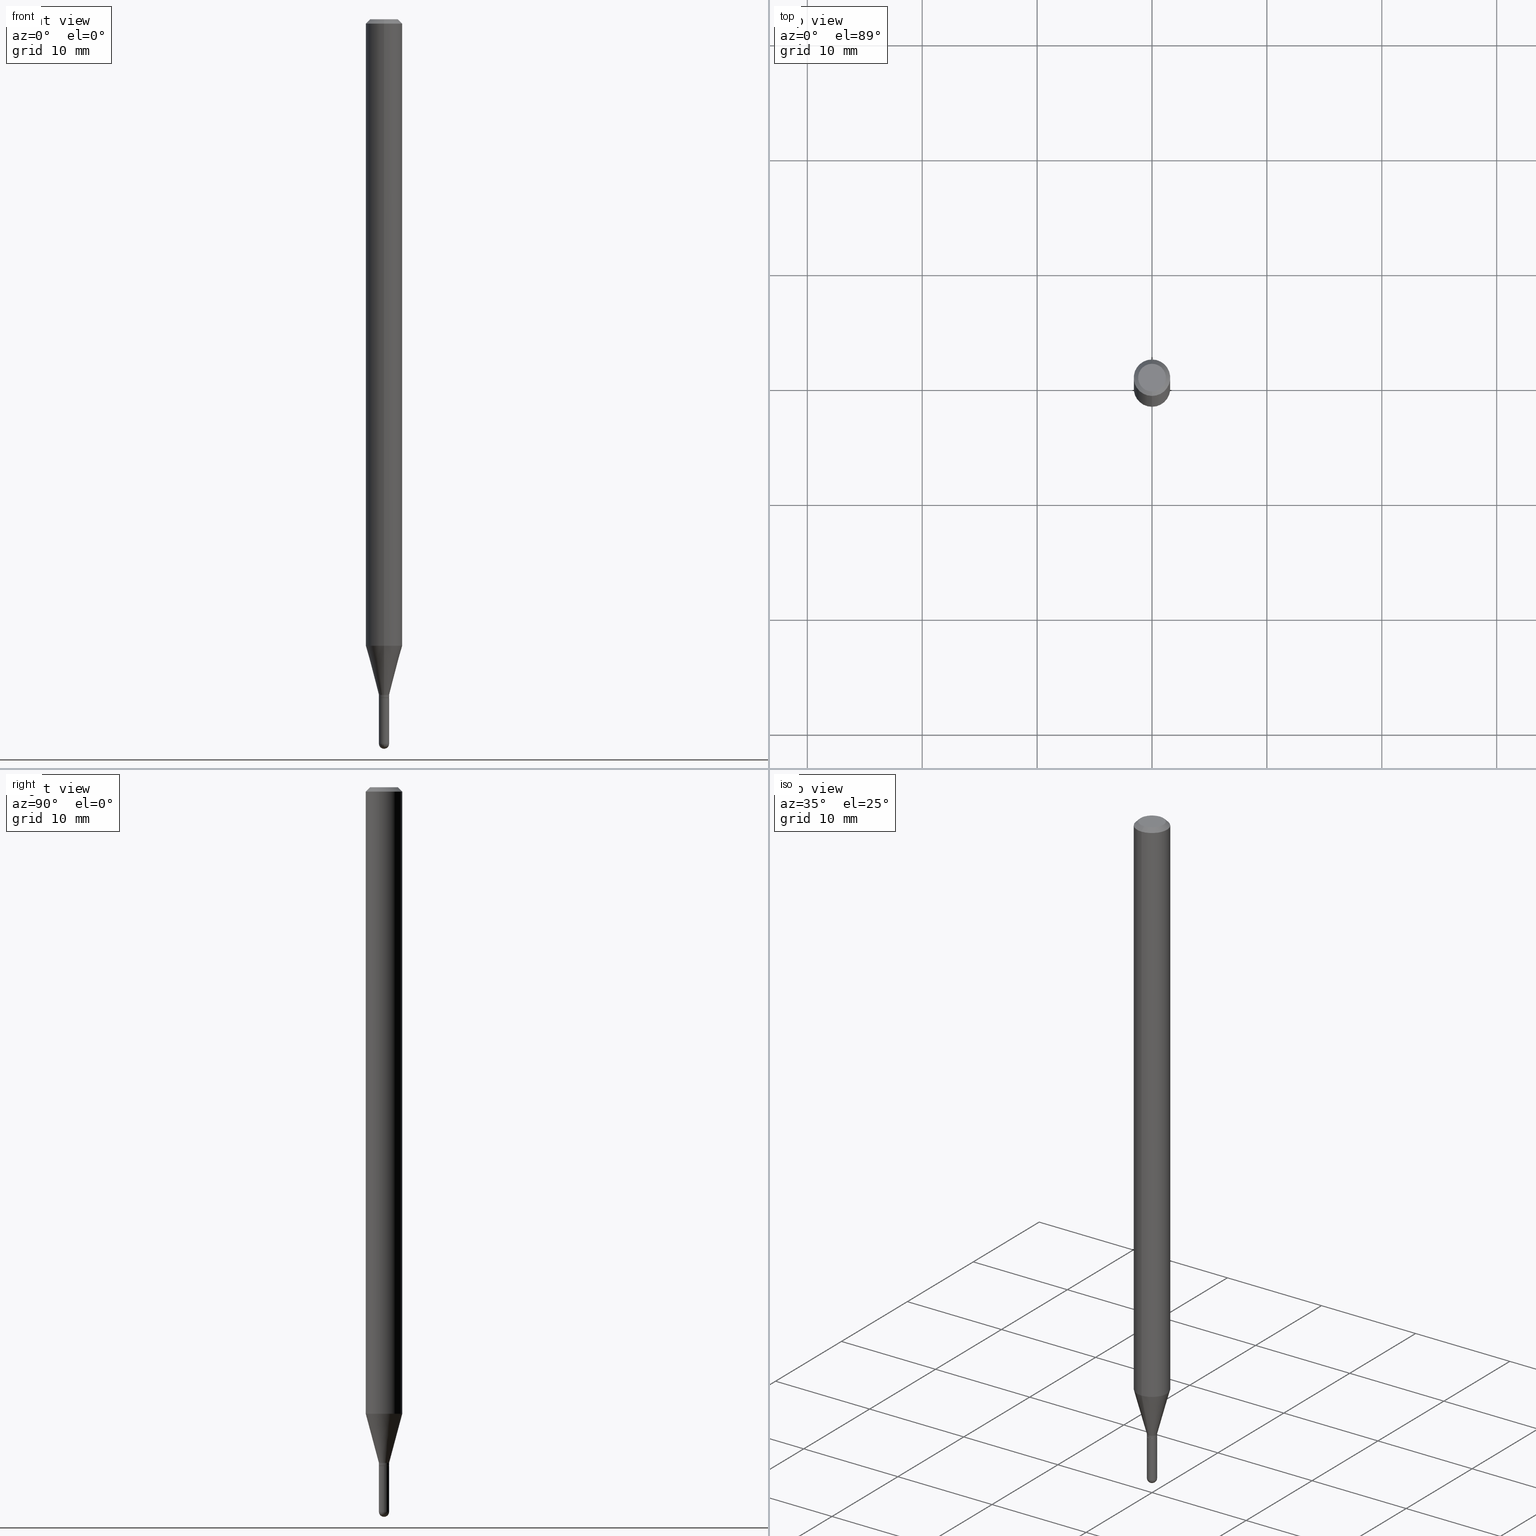
[diagram: canonical four-view strip — front | top / right | iso, engineering-drawing reading convention]
A machine part, canonical four-view strip (front | top / right | iso — engineering-drawing reading convention). The complete STEP part file that produces these views, byte-faithful:
ISO-10303-21;
HEADER;
FILE_DESCRIPTION (( 'STEP AP203' ),
    '1' );
FILE_NAME ('02726.STEP',
    '2024-03-07T21:01:19',
    ( '' ),
    ( '' ),
    'SwSTEP 2.0',
    'SolidWorks 2023',
    '' );
FILE_SCHEMA (( 'CONFIG_CONTROL_DESIGN' ));
ENDSEC;

DATA;
#1 = DATE_AND_TIME ( #397, #4 ) ;
#2 = DIRECTION ( 'NONE',  ( 1.000000000000000000, -6.982962677686303787E-15, 0.000000000000000000 ) ) ;
#3 = AXIS2_PLACEMENT_3D ( 'NONE', #422, #358, #71 ) ;
#4 = LOCAL_TIME ( 16, 1, 19.00000000000000000, #213 ) ;
#5 = DIRECTION ( 'NONE',  ( -2.445429610108093840E-29, 3.491537469856373273E-15, 1.000000000000000000 ) ) ;
#6 = CALENDAR_DATE ( 2024, 7, 3 ) ;
#7 = DIRECTION ( 'NONE',  ( -1.000000000000000000, 6.982962677686265922E-15, -4.876176775795935793E-29 ) ) ;
#8 = CARTESIAN_POINT ( 'NONE',  ( 5.685714974380442812E-29, -8.117694112810313450E-15, -2.325000000000000178 ) ) ;
#9 = CC_DESIGN_PERSON_AND_ORGANIZATION_ASSIGNMENT ( #52, #120, ( #225 ) ) ;
#10 = APPROVAL_ROLE ( '' ) ;
#11 = DIRECTION ( 'NONE',  ( 1.000000000000000000, -6.982962677686265922E-15, 4.876176775795936353E-29 ) ) ;
#12 = CONICAL_SURFACE ( 'NONE', #381, 0.01700000000000000122, 0.7853981633974739252 ) ;
#13 = ORIENTED_EDGE ( 'NONE', *, *, #491, .F. ) ;
#14 = DESIGN_CONTEXT ( 'detailed design', #83, 'design' ) ;
#15 = VECTOR ( 'NONE', #145, 39.37007874015748143 ) ;
#16 = VECTOR ( 'NONE', #156, 39.37007874015748143 ) ;
#17 = VERTEX_POINT ( 'NONE', #35 ) ;
#18 = ORIENTED_EDGE ( 'NONE', *, *, #176, .T. ) ;
#19 = ORIENTED_EDGE ( 'NONE', *, *, #477, .T. ) ;
#20 = CIRCLE ( 'NONE', #237, 0.01750000000000000167 ) ;
#21 = DIRECTION ( 'NONE',  ( 6.982962677686265922E-15, 1.000000000000000000, -3.483106191921935554E-15 ) ) ;
#22 = EDGE_CURVE ( 'NONE', #258, #240, #196, .T. ) ;
#23 = DIRECTION ( 'NONE',  ( -1.807323732225329350E-15, -0.2588190451025180194, 0.9659258262890689783 ) ) ;
#24 = DIRECTION ( 'NONE',  ( -2.445429610108093840E-29, 3.491537469856373273E-15, 1.000000000000000000 ) ) ;
#25 = EDGE_CURVE ( 'NONE', #142, #346, #508, .T. ) ;
#26 = VERTEX_POINT ( 'NONE', #318 ) ;
#27 = DIRECTION ( 'NONE',  ( -2.445429610108093840E-29, 3.491537469856373273E-15, 1.000000000000000000 ) ) ;
#28 = CARTESIAN_POINT ( 'NONE',  ( -1.243449787579559146E-16, -0.01750000000000853650, -2.482500000000000817 ) ) ;
#29 = ORIENTED_EDGE ( 'NONE', *, *, #198, .F. ) ;
#30 = EDGE_CURVE ( 'NONE', #217, #352, #204, .T. ) ;
#31 = CARTESIAN_POINT ( 'NONE',  ( 5.661169547400236272E-29, -8.082909242717501543E-15, -2.314999999999999503 ) ) ;
#32 = AXIS2_PLACEMENT_3D ( 'NONE', #41, #24, #122 ) ;
#33 = LINE ( 'NONE', #267, #16 ) ;
#34 = CC_DESIGN_SECURITY_CLASSIFICATION ( #225, ( #97 ) ) ;
#35 = CARTESIAN_POINT ( 'NONE',  ( 4.440892098501154699E-16, 0.06249999999999995143, -0.01500000000000054588 ) ) ;
#36 = DIRECTION ( 'NONE',  ( -2.445468806185136597E-29, 3.491481338843145583E-15, 1.000000000000000000 ) ) ;
#37 = CARTESIAN_POINT ( 'NONE',  ( 6.112923744959809177E-29, -8.729774913057117392E-15, -2.499999999999999556 ) ) ;
#38 = DIRECTION ( 'NONE',  ( 1.000000000000000000, -6.982962677686265922E-15, 4.883557194083112340E-29 ) ) ;
#39 = MANIFOLD_SOLID_BREP ( 'Body-Move/Copy2[1]', #335 ) ;
#40 = CALENDAR_DATE ( 2024, 7, 3 ) ;
#41 = CARTESIAN_POINT ( 'NONE',  ( 5.684401128696264485E-29, -8.116078848681139883E-15, -2.324500000000000455 ) ) ;
#42 = CARTESIAN_POINT ( 'NONE',  ( 3.316907271900976096E-16, 0.04749999999999999362, -3.299201705626934125E-16 ) ) ;
#43 = PERSON_AND_ORGANIZATION ( #424, #46 ) ;
#44 = AXIS2_PLACEMENT_3D ( 'NONE', #91, #287, #207 ) ;
#45 = EDGE_CURVE ( 'NONE', #63, #140, #280, .T. ) ;
#46 = ORGANIZATION ( 'UNSPECIFIED', 'UNSPECIFIED', '' ) ;
#47 = LINE ( 'NONE', #320, #261 ) ;
#48 = APPROVAL_ROLE ( '' ) ;
#49 = FACE_OUTER_BOUND ( 'NONE', #115, .T. ) ;
#50 = COORDINATED_UNIVERSAL_TIME_OFFSET ( 5, 0, .BEHIND. ) ;
#51 = CYLINDRICAL_SURFACE ( 'NONE', #380, 0.01750000000000000167 ) ;
#52 = PERSON_AND_ORGANIZATION ( #424, #46 ) ;
#53 = MANIFOLD_SOLID_BREP ( 'Body-Move/Copy2[2]', #475 ) ;
#54 = CONICAL_SURFACE ( 'NONE', #342, 0.06250000000000000000, 0.7853981633974483900 ) ;
#55 = CIRCLE ( 'NONE', #331, 0.04749999999999999362 ) ;
#56 = PRODUCT_DEFINITION_SHAPE ( 'NONE', 'NONE',  #510 ) ;
#57 = AXIS2_PLACEMENT_3D ( 'NONE', #277, #394, #197 ) ;
#58 = CC_DESIGN_DATE_AND_TIME_ASSIGNMENT ( #1, #84, ( #225 ) ) ;
#59 = EDGE_LOOP ( 'NONE', ( #178, #100 ) ) ;
#60 = ORIENTED_EDGE ( 'NONE', *, *, #477, .F. ) ;
#61 = VECTOR ( 'NONE', #229, 39.37007874015748143 ) ;
#62 = AXIS2_PLACEMENT_3D ( 'NONE', #340, #233, #266 ) ;
#63 = VERTEX_POINT ( 'NONE', #123 ) ;
#64 = DATE_AND_TIME ( #376, #311 ) ;
#65 = EDGE_LOOP ( 'NONE', ( #388, #82, #137, #29 ) ) ;
#66 = CARTESIAN_POINT ( 'NONE',  ( 6.070876311354603530E-29, -8.667602423678111529E-15, -2.482500000000000817 ) ) ;
#67 = VERTEX_POINT ( 'NONE', #212 ) ;
#68 = AXIS2_PLACEMENT_3D ( 'NONE', #304, #264, #144 ) ;
#69 = DIRECTION ( 'NONE',  ( -1.000000000000000000, 6.982962677686265133E-15, -4.883557194083112901E-29 ) ) ;
#70 = DIRECTION ( 'NONE',  ( -2.445429610108093840E-29, 3.491537469856373273E-15, 1.000000000000000000 ) ) ;
#71 = DIRECTION ( 'NONE',  ( -6.982962677686266711E-15, -1.000000000000000000, 3.491537469856373667E-15 ) ) ;
#72 = CARTESIAN_POINT ( 'NONE',  ( 5.250478507593680395E-29, -7.496532457185947677E-15, -2.147057713659399347 ) ) ;
#73 = CYLINDRICAL_SURFACE ( 'NONE', #62, 0.06250000000000000000 ) ;
#74 = ADVANCED_FACE ( 'NONE', ( #49 ), #268, .T. ) ;
#75 = ORIENTED_EDGE ( 'NONE', *, *, #293, .F. ) ;
#76 = FACE_OUTER_BOUND ( 'NONE', #488, .T. ) ;
#77 = DIRECTION ( 'NONE',  ( -2.445429610108093840E-29, 3.491537469856373273E-15, 1.000000000000000000 ) ) ;
#78 = EDGE_CURVE ( 'NONE', #299, #148, #454, .T. ) ;
#79 = ORIENTED_EDGE ( 'NONE', *, *, #489, .F. ) ;
#80 = LINE ( 'NONE', #194, #494 ) ;
#81 = DIRECTION ( 'NONE',  ( -2.445429610108093840E-29, 3.491537469856373273E-15, 1.000000000000000000 ) ) ;
#82 = ORIENTED_EDGE ( 'NONE', *, *, #179, .T. ) ;
#83 = APPLICATION_CONTEXT ( 'configuration controlled 3d designs of mechanical parts and assemblies' ) ;
#84 = DATE_TIME_ROLE ( 'classification_date' ) ;
#85 = CARTESIAN_POINT ( 'NONE',  ( 8.024537423409226872E-45, -1.145728054338050006E-30, -3.281442814890313739E-16 ) ) ;
#86 = FACE_OUTER_BOUND ( 'NONE', #59, .T. ) ;
#87 = ADVANCED_FACE ( 'NONE', ( #367 ), #51, .T. ) ;
#88 = CARTESIAN_POINT ( 'NONE',  ( -0.01750000000000000167, -8.268303289486194452E-15, -2.325000000000000178 ) ) ;
#89 = AXIS2_PLACEMENT_3D ( 'NONE', #479, #124, #285 ) ;
#90 = AXIS2_PLACEMENT_3D ( 'NONE', #464, #499, #511 ) ;
#91 = CARTESIAN_POINT ( 'NONE',  ( 5.685623843501318247E-29, -8.117824617416066972E-15, -2.324999999999999734 ) ) ;
#92 = CARTESIAN_POINT ( 'NONE',  ( 5.661169547400236272E-29, -8.082909242717501543E-15, -2.314999999999999503 ) ) ;
#93 = ADVANCED_FACE ( 'NONE', ( #362 ), #253, .F. ) ;
#94 = DATE_AND_TIME ( #6, #160 ) ;
#95 = ADVANCED_FACE ( 'NONE', ( #166 ), #434, .T. ) ;
#96 = AXIS2_PLACEMENT_3D ( 'NONE', #92, #443, #327 ) ;
#97 = PRODUCT_DEFINITION_FORMATION_WITH_SPECIFIED_SOURCE ( 'ANY', '', #248, .NOT_KNOWN. ) ;
#98 = ORIENTED_EDGE ( 'NONE', *, *, #99, .F. ) ;
#99 = EDGE_CURVE ( 'NONE', #427, #17, #171, .T. ) ;
#100 = ORIENTED_EDGE ( 'NONE', *, *, #45, .T. ) ;
#101 = APPROVAL ( #368, 'UNSPECIFIED' ) ;
#102 = CIRCLE ( 'NONE', #170, 0.01749999999999965472 ) ;
#103 = ORIENTED_EDGE ( 'NONE', *, *, #78, .T. ) ;
#104 = ORIENTED_EDGE ( 'NONE', *, *, #275, .T. ) ;
#105 = DIRECTION ( 'NONE',  ( -1.000000000000000000, 6.982962677686265133E-15, -4.883557194083112901E-29 ) ) ;
#106 = APPROVAL ( #208, 'UNSPECIFIED' ) ;
#107 = CYLINDRICAL_SURFACE ( 'NONE', #68, 0.06250000000000000000 ) ;
#108 = FACE_OUTER_BOUND ( 'NONE', #65, .T. ) ;
#109 = ORIENTED_EDGE ( 'NONE', *, *, #172, .F. ) ;
#110 = LOCAL_TIME ( 16, 1, 19.00000000000000000, #359 ) ;
#111 = FACE_OUTER_BOUND ( 'NONE', #504, .T. ) ;
#112 = LINE ( 'NONE', #507, #263 ) ;
#113 = ORIENTED_EDGE ( 'NONE', *, *, #361, .F. ) ;
#114 = CARTESIAN_POINT ( 'NONE',  ( 5.685623843501318247E-29, -8.117824617416066972E-15, -2.324999999999999734 ) ) ;
#115 = EDGE_LOOP ( 'NONE', ( #103, #19, #113, #465 ) ) ;
#116 = FACE_OUTER_BOUND ( 'NONE', #226, .T. ) ;
#117 = CARTESIAN_POINT ( 'NONE',  ( 3.668144415162220984E-31, -5.237306204784674417E-17, -0.01500000000000032904 ) ) ;
#118 = EDGE_LOOP ( 'NONE', ( #104, #152, #109, #341 ) ) ;
#119 = ORIENTED_EDGE ( 'NONE', *, *, #220, .T. ) ;
#120 = PERSON_AND_ORGANIZATION_ROLE ( 'classification_officer' ) ;
#121 = LOCAL_TIME ( 16, 1, 19.00000000000000000, #50 ) ;
#122 = DIRECTION ( 'NONE',  ( -6.982962677686265133E-15, -1.000000000000000000, 0.000000000000000000 ) ) ;
#123 = CARTESIAN_POINT ( 'NONE',  ( -3.773273898774340269E-16, -0.04749999999999999362, -1.622962516708536484E-16 ) ) ;
#124 = DIRECTION ( 'NONE',  ( -2.445429610108093840E-29, 3.491537469856373273E-15, 1.000000000000000000 ) ) ;
#125 = APPROVAL_DATE_TIME ( #292, #106 ) ;
#126 = DIRECTION ( 'NONE',  ( -2.445468806185136597E-29, 3.491481338843145583E-15, 1.000000000000000000 ) ) ;
#127 = CALENDAR_DATE ( 2024, 7, 3 ) ;
#128 = CIRCLE ( 'NONE', #89, 0.01749999999999965472 ) ;
#129 = AXIS2_PLACEMENT_3D ( 'NONE', #185, #385, #379 ) ;
#130 = FACE_OUTER_BOUND ( 'NONE', #180, .T. ) ;
#131 = LENGTH_MEASURE_WITH_UNIT ( LENGTH_MEASURE( 0.02539999999999999897 ), #254 );
#132 = EDGE_CURVE ( 'NONE', #173, #67, #182, .T. ) ;
#133 = ORIENTED_EDGE ( 'NONE', *, *, #181, .F. ) ;
#134 =( GEOMETRIC_REPRESENTATION_CONTEXT ( 3 ) GLOBAL_UNCERTAINTY_ASSIGNED_CONTEXT ( ( #251 ) ) GLOBAL_UNIT_ASSIGNED_CONTEXT ( ( #442, #326, #286 ) ) REPRESENTATION_CONTEXT ( 'NONE', 'WORKASPACE' ) );
#135 = ADVANCED_FACE ( 'NONE', ( #130 ), #291, .F. ) ;
#136 = ORIENTED_EDGE ( 'NONE', *, *, #215, .F. ) ;
#137 = ORIENTED_EDGE ( 'NONE', *, *, #22, .T. ) ;
#138 = PRODUCT_RELATED_PRODUCT_CATEGORY ( 'detail', '', ( #248 ) ) ;
#139 = ADVANCED_FACE ( 'NONE', ( #163 ), #391, .T. ) ;
#140 = VERTEX_POINT ( 'NONE', #441 ) ;
#141 = VECTOR ( 'NONE', #302, 39.37007874015748143 ) ;
#142 = VERTEX_POINT ( 'NONE', #325 ) ;
#143 = ORIENTED_EDGE ( 'NONE', *, *, #293, .T. ) ;
#144 = DIRECTION ( 'NONE',  ( -6.982962677686265922E-15, -1.000000000000000000, 3.491537469856373273E-15 ) ) ;
#145 = DIRECTION ( 'NONE',  ( -2.445429610108093840E-29, 3.491537469856373273E-15, 1.000000000000000000 ) ) ;
#146 = DIRECTION ( 'NONE',  ( 1.000000000000000000, -6.982962677686265922E-15, 4.876176775795936353E-29 ) ) ;
#147 = CARTESIAN_POINT ( 'NONE',  ( 1.225686219186728824E-16, 0.01699999999999188272, -2.324999999999999734 ) ) ;
#148 = VERTEX_POINT ( 'NONE', #365 ) ;
#149 = CIRCLE ( 'NONE', #323, 0.06250000000000000000 ) ;
#150 = FACE_OUTER_BOUND ( 'NONE', #468, .T. ) ;
#151 = CARTESIAN_POINT ( 'NONE',  ( 1.243449787580714581E-16, 0.01749999999999147723, -2.324500000000000455 ) ) ;
#152 = ORIENTED_EDGE ( 'NONE', *, *, #255, .T. ) ;
#153 = DIRECTION ( 'NONE',  ( 1.839019923739599526E-15, 0.2588190451025248473, 0.9659258262890670910 ) ) ;
#154 = DIRECTION ( 'NONE',  ( -2.445429610108093840E-29, 3.491537469856373273E-15, 1.000000000000000000 ) ) ;
#155 = ORIENTED_EDGE ( 'NONE', *, *, #228, .T. ) ;
#156 = DIRECTION ( 'NONE',  ( -2.445429610108093840E-29, 3.491537469856373273E-15, 1.000000000000000000 ) ) ;
#157 = EDGE_CURVE ( 'NONE', #352, #26, #463, .T. ) ;
#158 = DIRECTION ( 'NONE',  ( 1.000000000000000000, -6.982962677686248567E-15, 0.000000000000000000 ) ) ;
#159 = PERSON_AND_ORGANIZATION ( #424, #46 ) ;
#160 = LOCAL_TIME ( 16, 1, 19.00000000000000000, #437 ) ;
#161 = DIRECTION ( 'NONE',  ( -6.982962677686265922E-15, -1.000000000000000000, 3.483106191921935554E-15 ) ) ;
#162 = CC_DESIGN_PERSON_AND_ORGANIZATION_ASSIGNMENT ( #167, #405, ( #97 ) ) ;
#163 = FACE_OUTER_BOUND ( 'NONE', #413, .T. ) ;
#164 = COORDINATED_UNIVERSAL_TIME_OFFSET ( 5, 0, .BEHIND. ) ;
#165 = DIRECTION ( 'NONE',  ( 2.438088387897960049E-29, -3.491481338843145188E-15, -1.000000000000000000 ) ) ;
#166 = FACE_OUTER_BOUND ( 'NONE', #118, .T. ) ;
#167 = PERSON_AND_ORGANIZATION ( #424, #46 ) ;
#168 = ADVANCED_FACE ( 'NONE', ( #86 ), #244, .F. ) ;
#169 = AXIS2_PLACEMENT_3D ( 'NONE', #42, #399, #246 ) ;
#170 = AXIS2_PLACEMENT_3D ( 'NONE', #31, #389, #190 ) ;
#171 = LINE ( 'NONE', #209, #214 ) ;
#172 = EDGE_CURVE ( 'NONE', #240, #257, #128, .T. ) ;
#173 = VERTEX_POINT ( 'NONE', #88 ) ;
#174 = AXIS2_PLACEMENT_3D ( 'NONE', #241, #38, #200 ) ;
#175 = CIRCLE ( 'NONE', #377, 0.01750000000000000167 ) ;
#176 = EDGE_CURVE ( 'NONE', #63, #346, #47, .T. ) ;
#177 = ORIENTED_EDGE ( 'NONE', *, *, #262, .T. ) ;
#178 = ORIENTED_EDGE ( 'NONE', *, *, #215, .T. ) ;
#179 = EDGE_CURVE ( 'NONE', #321, #258, #219, .T. ) ;
#180 = EDGE_LOOP ( 'NONE', ( #119, #279 ) ) ;
#181 = EDGE_CURVE ( 'NONE', #471, #352, #502, .T. ) ;
#182 = CIRCLE ( 'NONE', #444, 0.01750000000000000167 ) ;
#183 = CC_DESIGN_APPROVAL ( #106, ( #510 ) ) ;
#184 = VERTEX_POINT ( 'NONE', #28 ) ;
#185 = CARTESIAN_POINT ( 'NONE',  ( 6.069379770348537778E-29, -8.669745555576616428E-15, -2.482499999999999929 ) ) ;
#186 = ORIENTED_EDGE ( 'NONE', *, *, #176, .F. ) ;
#187 = FACE_OUTER_BOUND ( 'NONE', #294, .T. ) ;
#188 = DIRECTION ( 'NONE',  ( -2.445468806185136597E-29, 3.491481338843145583E-15, 1.000000000000000000 ) ) ;
#189 = ORIENTED_EDGE ( 'NONE', *, *, #303, .T. ) ;
#190 = DIRECTION ( 'NONE',  ( -6.982962677686265922E-15, -1.000000000000000000, 0.000000000000000000 ) ) ;
#191 = CARTESIAN_POINT ( 'NONE',  ( -1.222018468594507938E-16, -0.01750000000000782874, -2.324500000000000455 ) ) ;
#192 = EDGE_CURVE ( 'NONE', #140, #17, #357, .T. ) ;
#193 = CONICAL_SURFACE ( 'NONE', #487, 0.06250000000000000000, 0.7853981633974483900 ) ;
#194 = CARTESIAN_POINT ( 'NONE',  ( -1.222018468594506458E-16, -0.01750000000000773853, -2.314999999999999503 ) ) ;
#195 = DIRECTION ( 'NONE',  ( -2.445429610108093840E-29, 3.491537469856373273E-15, 1.000000000000000000 ) ) ;
#196 = LINE ( 'NONE', #356, #414 ) ;
#197 = DIRECTION ( 'NONE',  ( -6.982962677686265922E-15, -1.000000000000000000, 3.491537469856373667E-15 ) ) ;
#198 = EDGE_CURVE ( 'NONE', #257, #240, #493, .T. ) ;
#199 = CARTESIAN_POINT ( 'NONE',  ( 5.250478507593680395E-29, -7.496532457185947677E-15, -2.147057713659399347 ) ) ;
#200 = DIRECTION ( 'NONE',  ( 6.982962677686265133E-15, 1.000000000000000000, 0.000000000000000000 ) ) ;
#201 = SECURITY_CLASSIFICATION_LEVEL ( 'unclassified' ) ;
#202 = CARTESIAN_POINT ( 'NONE',  ( 5.685623843501318247E-29, -8.117824617416066972E-15, -2.324999999999999734 ) ) ;
#203 = CARTESIAN_POINT ( 'NONE',  ( 5.685623843501318247E-29, -8.117824617416066972E-15, -2.324999999999999734 ) ) ;
#204 = CIRCLE ( 'NONE', #174, 0.01749999999999973799 ) ;
#205 = APPLICATION_PROTOCOL_DEFINITION ( 'international standard', 'config_control_design', 1994, #481 ) ;
#206 = AXIS2_PLACEMENT_3D ( 'NONE', #428, #69, #227 ) ;
#207 = DIRECTION ( 'NONE',  ( -6.982962677686265922E-15, -1.000000000000000000, 3.491537469856373273E-15 ) ) ;
#208 = APPROVAL_STATUS ( 'not_yet_approved' ) ;
#209 = CARTESIAN_POINT ( 'NONE',  ( 4.440892098500625669E-16, 0.06250000000000000000, -2.182210918660233295E-16 ) ) ;
#210 = ADVANCED_FACE ( 'NONE', ( #398 ), #54, .T. ) ;
#211 = PERSON_AND_ORGANIZATION_ROLE ( 'creator' ) ;
#212 = CARTESIAN_POINT ( 'NONE',  ( 0.01750000000000000167, -8.239895959669823433E-15, -2.325000000000000178 ) ) ;
#213 = COORDINATED_UNIVERSAL_TIME_OFFSET ( 5, 0, .BEHIND. ) ;
#214 = VECTOR ( 'NONE', #5, 39.37007874015748143 ) ;
#215 = EDGE_CURVE ( 'NONE', #140, #63, #55, .T. ) ;
#216 = ORIENTED_EDGE ( 'NONE', *, *, #172, .T. ) ;
#217 = VERTEX_POINT ( 'NONE', #37 ) ;
#218 = ORIENTED_EDGE ( 'NONE', *, *, #181, .T. ) ;
#219 = CIRCLE ( 'NONE', #407, 0.01700000000000000122 ) ;
#220 = EDGE_CURVE ( 'NONE', #67, #173, #249, .T. ) ;
#221 = ORIENTED_EDGE ( 'NONE', *, *, #461, .T. ) ;
#222 = EDGE_LOOP ( 'NONE', ( #492, #301, #310, #297, #218 ) ) ;
#223 = ORIENTED_EDGE ( 'NONE', *, *, #30, .T. ) ;
#224 = CARTESIAN_POINT ( 'NONE',  ( 1.222018468595694434E-16, 0.01749999999999120315, -2.482500000000000817 ) ) ;
#225 = SECURITY_CLASSIFICATION ( '', '', #201 ) ;
#226 = EDGE_LOOP ( 'NONE', ( #396, #458, #410, #497 ) ) ;
#227 = DIRECTION ( 'NONE',  ( 6.982962677686265133E-15, 1.000000000000000000, 0.000000000000000000 ) ) ;
#228 = EDGE_CURVE ( 'NONE', #257, #148, #33, .T. ) ;
#229 = DIRECTION ( 'NONE',  ( 4.937700262164548042E-15, 0.7071067811865451302, -0.7071067811865499042 ) ) ;
#230 = CARTESIAN_POINT ( 'NONE',  ( 3.668144415162220984E-31, -5.237306204784674417E-17, -0.01500000000000032904 ) ) ;
#231 = DIRECTION ( 'NONE',  ( 6.982962677686265922E-15, 1.000000000000000000, -3.483106191921935554E-15 ) ) ;
#232 = ORIENTED_EDGE ( 'NONE', *, *, #236, .T. ) ;
#233 = DIRECTION ( 'NONE',  ( -2.445429610108093840E-29, 3.491537469856373273E-15, 1.000000000000000000 ) ) ;
#234 = DIRECTION ( 'NONE',  ( -2.445468806185136597E-29, 3.491481338843145583E-15, 1.000000000000000000 ) ) ;
#235 = EDGE_LOOP ( 'NONE', ( #186, #136, #406, #333 ) ) ;
#236 = EDGE_CURVE ( 'NONE', #471, #67, #474, .T. ) ;
#237 = AXIS2_PLACEMENT_3D ( 'NONE', #66, #348, #501 ) ;
#238 = DIRECTION ( 'NONE',  ( -6.982962677686265922E-15, -1.000000000000000000, 3.491537469856373667E-15 ) ) ;
#239 = DIRECTION ( 'NONE',  ( -6.982962677686265922E-15, -1.000000000000000000, 0.000000000000000000 ) ) ;
#240 = VERTEX_POINT ( 'NONE', #191 ) ;
#241 = CARTESIAN_POINT ( 'NONE',  ( 6.069379770348537778E-29, -8.669745555576616428E-15, -2.482499999999999929 ) ) ;
#242 = DATE_TIME_ROLE ( 'creation_date' ) ;
#243 = CARTESIAN_POINT ( 'NONE',  ( 6.070876311354603530E-29, -8.667602423678111529E-15, -2.482500000000000817 ) ) ;
#244 = PLANE ( 'NONE',  #169 ) ;
#245 = APPROVAL_STATUS ( 'not_yet_approved' ) ;
#246 = DIRECTION ( 'NONE',  ( 6.982962677686265922E-15, 1.000000000000000000, -3.491537469856373273E-15 ) ) ;
#247 = AXIS2_PLACEMENT_3D ( 'NONE', #512, #322, #482 ) ;
#248 = PRODUCT ( '02726', '02726', '', ( #448 ) ) ;
#249 = CIRCLE ( 'NONE', #90, 0.01750000000000000167 ) ;
#250 = DIRECTION ( 'NONE',  ( -2.445429610108093840E-29, 3.491537469856373273E-15, 1.000000000000000000 ) ) ;
#251 = UNCERTAINTY_MEASURE_WITH_UNIT (LENGTH_MEASURE( 1.000000000000000082E-05 ), #442, 'distance_accuracy_value', 'NONE');
#252 = CC_DESIGN_PERSON_AND_ORGANIZATION_ASSIGNMENT ( #159, #211, ( #510 ) ) ;
#253 = PLANE ( 'NONE',  #44 ) ;
#254 =( LENGTH_UNIT ( ) NAMED_UNIT ( * ) SI_UNIT ( $, .METRE. ) );
#255 = EDGE_CURVE ( 'NONE', #321, #257, #429, .T. ) ;
#256 = VECTOR ( 'NONE', #503, 39.37007874015748143 ) ;
#257 = VERTEX_POINT ( 'NONE', #151 ) ;
#258 = VERTEX_POINT ( 'NONE', #313 ) ;
#259 = ORIENTED_EDGE ( 'NONE', *, *, #45, .F. ) ;
#260 = APPROVAL_DATE_TIME ( #64, #328 ) ;
#261 = VECTOR ( 'NONE', #307, 39.37007874015748143 ) ;
#262 = EDGE_CURVE ( 'NONE', #427, #142, #455, .T. ) ;
#263 = VECTOR ( 'NONE', #271, 39.37007874015748143 ) ;
#264 = DIRECTION ( 'NONE',  ( -2.445429610108093840E-29, 3.491537469856373273E-15, 1.000000000000000000 ) ) ;
#265 = DIRECTION ( 'NONE',  ( -4.937700262164674260E-15, -0.7071067811865632269, 0.7071067811865319186 ) ) ;
#266 = DIRECTION ( 'NONE',  ( -6.982962677686265922E-15, -1.000000000000000000, 3.491537469856373273E-15 ) ) ;
#267 = CARTESIAN_POINT ( 'NONE',  ( 1.243449787580150792E-16, 0.01749999999999965472, -6.110190572248533419E-17 ) ) ;
#268 = CONICAL_SURFACE ( 'NONE', #96, 0.01749999999999965472, 0.2617993877991501850 ) ;
#269 = ORIENTED_EDGE ( 'NONE', *, *, #361, .T. ) ;
#270 = DIRECTION ( 'NONE',  ( 6.982962677686265133E-15, 1.000000000000000000, 0.000000000000000000 ) ) ;
#271 = DIRECTION ( 'NONE',  ( -2.445429610108093840E-29, 3.491537469856373273E-15, 1.000000000000000000 ) ) ;
#272 = ORIENTED_EDGE ( 'NONE', *, *, #30, .F. ) ;
#273 = SPHERICAL_SURFACE ( 'NONE', #206, 0.01749999999999973799 ) ;
#274 = CARTESIAN_POINT ( 'NONE',  ( 4.364351673553919652E-16, 0.06249999999999995143, -0.01500000000000054588 ) ) ;
#275 = EDGE_CURVE ( 'NONE', #258, #321, #289, .T. ) ;
#276 = ORIENTED_EDGE ( 'NONE', *, *, #179, .F. ) ;
#277 = CARTESIAN_POINT ( 'NONE',  ( 0.000000000000000000, 0.000000000000000000, 0.000000000000000000 ) ) ;
#278 = DIRECTION ( 'NONE',  ( 2.445429610108093840E-29, -3.491537469856373273E-15, -1.000000000000000000 ) ) ;
#279 = ORIENTED_EDGE ( 'NONE', *, *, #132, .T. ) ;
#280 = CIRCLE ( 'NONE', #3, 0.04749999999999999362 ) ;
#281 = ORIENTED_EDGE ( 'NONE', *, *, #303, .F. ) ;
#282 = CARTESIAN_POINT ( 'NONE',  ( 0.01750000000000000167, -1.222018468595096625E-16, 8.533309357642889039E-31 ) ) ;
#283 = CARTESIAN_POINT ( 'NONE',  ( 1.222018468595665098E-16, 0.01749999999999188316, -2.325000000000000178 ) ) ;
#284 = PERSON_AND_ORGANIZATION_ROLE ( 'design_supplier' ) ;
#285 = DIRECTION ( 'NONE',  ( -6.982962677686265133E-15, -1.000000000000000000, 0.000000000000000000 ) ) ;
#286 =( NAMED_UNIT ( * ) SI_UNIT ( $, .STERADIAN. ) SOLID_ANGLE_UNIT ( ) );
#287 = DIRECTION ( 'NONE',  ( -2.445429610108093279E-29, 3.491537469856373273E-15, 1.000000000000000000 ) ) ;
#288 = AXIS2_PLACEMENT_3D ( 'NONE', #243, #234, #355 ) ;
#289 = CIRCLE ( 'NONE', #309, 0.01700000000000000122 ) ;
#290 = EDGE_CURVE ( 'NONE', #240, #299, #112, .T. ) ;
#291 = PLANE ( 'NONE',  #308 ) ;
#292 = DATE_AND_TIME ( #40, #121 ) ;
#293 = EDGE_CURVE ( 'NONE', #184, #471, #175, .T. ) ;
#294 = EDGE_LOOP ( 'NONE', ( #13, #450, #143, #232, #453 ) ) ;
#295 = AXIS2_PLACEMENT_3D ( 'NONE', #203, #250, #329 ) ;
#296 = ORIENTED_EDGE ( 'NONE', *, *, #78, .F. ) ;
#297 = ORIENTED_EDGE ( 'NONE', *, *, #236, .F. ) ;
#298 = EDGE_CURVE ( 'NONE', #17, #346, #421, .T. ) ;
#299 = VERTEX_POINT ( 'NONE', #317 ) ;
#300 = AXIS2_PLACEMENT_3D ( 'NONE', #498, #36, #146 ) ;
#301 = ORIENTED_EDGE ( 'NONE', *, *, #491, .T. ) ;
#302 = DIRECTION ( 'NONE',  ( -2.445468806185136877E-29, 3.491481338843145188E-15, 1.000000000000000000 ) ) ;
#303 = EDGE_CURVE ( 'NONE', #346, #17, #149, .T. ) ;
#304 = CARTESIAN_POINT ( 'NONE',  ( 0.000000000000000000, 0.000000000000000000, 0.000000000000000000 ) ) ;
#305 = ORIENTED_EDGE ( 'NONE', *, *, #262, .F. ) ;
#306 = CYLINDRICAL_SURFACE ( 'NONE', #392, 0.01749999999999965472 ) ;
#307 = DIRECTION ( 'NONE',  ( -4.851104656540964275E-15, -0.7071067811865500152, -0.7071067811865450192 ) ) ;
#308 = AXIS2_PLACEMENT_3D ( 'NONE', #283, #165, #7 ) ;
#309 = AXIS2_PLACEMENT_3D ( 'NONE', #202, #195, #433 ) ;
#310 = ORIENTED_EDGE ( 'NONE', *, *, #220, .F. ) ;
#311 = LOCAL_TIME ( 16, 1, 19.00000000000000000, #164 ) ;
#312 = CYLINDRICAL_SURFACE ( 'NONE', #300, 0.01750000000000000167 ) ;
#313 = CARTESIAN_POINT ( 'NONE',  ( -1.187103655206096848E-16, -0.01700000000000811973, -2.324999999999999734 ) ) ;
#314 = ORIENTED_EDGE ( 'NONE', *, *, #298, .F. ) ;
#315 = LINE ( 'NONE', #469, #141 ) ;
#316 = ADVANCED_FACE ( 'NONE', ( #108 ), #12, .T. ) ;
#317 = CARTESIAN_POINT ( 'NONE',  ( -1.222018468594506458E-16, -0.01750000000000773853, -2.314999999999999503 ) ) ;
#318 = CARTESIAN_POINT ( 'NONE',  ( -0.01750000000000000513, -8.268303289486194452E-15, -2.482500000000000817 ) ) ;
#319 = DIRECTION ( 'NONE',  ( 1.000000000000000000, 0.000000000000000000, 0.000000000000000000 ) ) ;
#320 = CARTESIAN_POINT ( 'NONE',  ( -4.287811248607203282E-16, -0.06250000000000005551, -0.01500000000000011047 ) ) ;
#321 = VERTEX_POINT ( 'NONE', #147 ) ;
#322 = DIRECTION ( 'NONE',  ( -2.445429610108093840E-29, 3.491537469856373273E-15, 1.000000000000000000 ) ) ;
#323 = AXIS2_PLACEMENT_3D ( 'NONE', #460, #467, #470 ) ;
#324 = DATE_AND_TIME ( #127, #110 ) ;
#325 = CARTESIAN_POINT ( 'NONE',  ( -4.364351673553391609E-16, -0.06250000000000749401, -2.147057713659398903 ) ) ;
#326 =( NAMED_UNIT ( * ) PLANE_ANGLE_UNIT ( ) SI_UNIT ( $, .RADIAN. ) );
#327 = DIRECTION ( 'NONE',  ( -6.982962677686265922E-15, -1.000000000000000000, 0.000000000000000000 ) ) ;
#328 = APPROVAL ( #245, 'UNSPECIFIED' ) ;
#329 = DIRECTION ( 'NONE',  ( -6.982962677686265922E-15, -1.000000000000000000, 0.000000000000000000 ) ) ;
#330 = PERSON_AND_ORGANIZATION ( #424, #46 ) ;
#331 = AXIS2_PLACEMENT_3D ( 'NONE', #85, #77, #395 ) ;
#332 = CC_DESIGN_APPROVAL ( #328, ( #225 ) ) ;
#333 = ORIENTED_EDGE ( 'NONE', *, *, #298, .T. ) ;
#334 = ADVANCED_FACE ( 'NONE', ( #426 ), #73, .T. ) ;
#335 = CLOSED_SHELL ( 'NONE', ( #87, #374, #135, #371, #446 ) ) ;
#336 = APPROVAL_PERSON_ORGANIZATION ( #366, #101, #10 ) ;
#337 = ADVANCED_BREP_SHAPE_REPRESENTATION ( '02726', ( #39, #53, #344 ), #134 ) ;
#338 = EDGE_LOOP ( 'NONE', ( #259, #18, #189, #373 ) ) ;
#339 = EDGE_LOOP ( 'NONE', ( #472, #276 ) ) ;
#340 = CARTESIAN_POINT ( 'NONE',  ( 0.000000000000000000, 0.000000000000000000, 0.000000000000000000 ) ) ;
#341 = ORIENTED_EDGE ( 'NONE', *, *, #22, .F. ) ;
#342 = AXIS2_PLACEMENT_3D ( 'NONE', #117, #278, #231 ) ;
#343 = APPROVAL_PERSON_ORGANIZATION ( #473, #106, #48 ) ;
#344 = AXIS2_PLACEMENT_3D ( 'NONE', #370, #480, #319 ) ;
#345 = DIRECTION ( 'NONE',  ( -2.445429610108093840E-29, 3.491537469856373273E-15, 1.000000000000000000 ) ) ;
#346 = VERTEX_POINT ( 'NONE', #459 ) ;
#347 = CARTESIAN_POINT ( 'NONE',  ( 5.685623843501318247E-29, -8.117824617416066972E-15, -2.324999999999999734 ) ) ;
#348 = DIRECTION ( 'NONE',  ( -2.445468806185136597E-29, 3.491481338843145583E-15, 1.000000000000000000 ) ) ;
#349 = CARTESIAN_POINT ( 'NONE',  ( 1.207922650792738876E-16, 0.01699999999999188272, -2.324999999999999734 ) ) ;
#350 = AXIS2_PLACEMENT_3D ( 'NONE', #447, #403, #404 ) ;
#351 = CIRCLE ( 'NONE', #408, 0.06250000000000000000 ) ;
#352 = VERTEX_POINT ( 'NONE', #224 ) ;
#353 = ADVANCED_FACE ( 'NONE', ( #111 ), #107, .T. ) ;
#354 = CARTESIAN_POINT ( 'NONE',  ( 0.01750000000000000513, -8.514850115103722472E-15, -2.482500000000000817 ) ) ;
#355 = DIRECTION ( 'NONE',  ( 1.000000000000000000, -6.982962677686303787E-15, 0.000000000000000000 ) ) ;
#356 = CARTESIAN_POINT ( 'NONE',  ( -1.187103655206096848E-16, -0.01700000000000811973, -2.324999999999999734 ) ) ;
#357 = LINE ( 'NONE', #274, #61 ) ;
#358 = DIRECTION ( 'NONE',  ( -2.445429610108093840E-29, 3.491537469856373273E-15, 1.000000000000000000 ) ) ;
#359 = COORDINATED_UNIVERSAL_TIME_OFFSET ( 5, 0, .BEHIND. ) ;
#360 = CARTESIAN_POINT ( 'NONE',  ( 6.070876311354603530E-29, -8.667602423678111529E-15, -2.482500000000000817 ) ) ;
#361 = EDGE_CURVE ( 'NONE', #142, #427, #351, .T. ) ;
#362 = FACE_OUTER_BOUND ( 'NONE', #339, .T. ) ;
#363 = APPLICATION_PROTOCOL_DEFINITION ( 'international standard', 'config_control_design', 1994, #83 ) ;
#364 = CC_DESIGN_PERSON_AND_ORGANIZATION_ASSIGNMENT ( #43, #486, ( #248 ) ) ;
#365 = CARTESIAN_POINT ( 'NONE',  ( 2.842170943040934763E-16, 0.01749999999999157438, -2.314999999999999503 ) ) ;
#366 = PERSON_AND_ORGANIZATION ( #424, #46 ) ;
#367 = FACE_OUTER_BOUND ( 'NONE', #222, .T. ) ;
#368 = APPROVAL_STATUS ( 'not_yet_approved' ) ;
#369 = CARTESIAN_POINT ( 'NONE',  ( 0.000000000000000000, 0.000000000000000000, 0.000000000000000000 ) ) ;
#370 = CARTESIAN_POINT ( 'NONE',  ( 0.000000000000000000, 0.000000000000000000, 0.000000000000000000 ) ) ;
#371 = ADVANCED_FACE ( 'NONE', ( #76 ), #418, .T. ) ;
#372 = CIRCLE ( 'NONE', #129, 0.01749999999999973799 ) ;
#373 = ORIENTED_EDGE ( 'NONE', *, *, #192, .F. ) ;
#374 = ADVANCED_FACE ( 'NONE', ( #150 ), #273, .T. ) ;
#375 = ORIENTED_EDGE ( 'NONE', *, *, #419, .F. ) ;
#376 = CALENDAR_DATE ( 2024, 7, 3 ) ;
#377 = AXIS2_PLACEMENT_3D ( 'NONE', #360, #188, #2 ) ;
#378 = ORIENTED_EDGE ( 'NONE', *, *, #157, .F. ) ;
#379 = DIRECTION ( 'NONE',  ( -7.105427357601001859E-15, -1.000000000000000000, 0.000000000000000000 ) ) ;
#380 = AXIS2_PLACEMENT_3D ( 'NONE', #369, #126, #11 ) ;
#381 = AXIS2_PLACEMENT_3D ( 'NONE', #347, #81, #420 ) ;
#382 = EDGE_LOOP ( 'NONE', ( #269, #430, #281, #490 ) ) ;
#383 = CARTESIAN_POINT ( 'NONE',  ( 6.069379770348537778E-29, -8.669745555576616428E-15, -2.482499999999999929 ) ) ;
#384 = CARTESIAN_POINT ( 'NONE',  ( 3.668144415162220984E-31, -5.237306204784674417E-17, -0.01500000000000032904 ) ) ;
#385 = DIRECTION ( 'NONE',  ( -1.000000000000000000, 7.105427357601001070E-15, -4.926315508542082329E-29 ) ) ;
#386 = DIRECTION ( 'NONE',  ( -2.445468806185136877E-29, 3.491481338843145188E-15, 1.000000000000000000 ) ) ;
#387 = ADVANCED_FACE ( 'NONE', ( #495 ), #193, .T. ) ;
#388 = ORIENTED_EDGE ( 'NONE', *, *, #255, .F. ) ;
#389 = DIRECTION ( 'NONE',  ( -2.445429610108093840E-29, 3.491537469856373273E-15, 1.000000000000000000 ) ) ;
#390 = DIRECTION ( 'NONE',  ( -2.445429610108093840E-29, 3.491537469856373273E-15, 1.000000000000000000 ) ) ;
#391 = CONICAL_SURFACE ( 'NONE', #350, 0.01749999999999965472, 0.2617993877991501850 ) ;
#392 = AXIS2_PLACEMENT_3D ( 'NONE', #462, #27, #238 ) ;
#393 = ORIENTED_EDGE ( 'NONE', *, *, #419, .T. ) ;
#394 = DIRECTION ( 'NONE',  ( -2.445429610108093840E-29, 3.491537469856373273E-15, 1.000000000000000000 ) ) ;
#395 = DIRECTION ( 'NONE',  ( -6.982962677686266711E-15, -1.000000000000000000, 3.491537469856373667E-15 ) ) ;
#396 = ORIENTED_EDGE ( 'NONE', *, *, #228, .F. ) ;
#397 = CALENDAR_DATE ( 2024, 7, 3 ) ;
#398 = FACE_OUTER_BOUND ( 'NONE', #338, .T. ) ;
#399 = DIRECTION ( 'NONE',  ( 2.445429610108093279E-29, -3.491537469856373273E-15, -1.000000000000000000 ) ) ;
#400 = APPROVAL_ROLE ( '' ) ;
#401 = DIRECTION ( 'NONE',  ( 1.000000000000000000, -6.982962677686303787E-15, 0.000000000000000000 ) ) ;
#402 = AXIS2_PLACEMENT_3D ( 'NONE', #383, #105, #270 ) ;
#403 = DIRECTION ( 'NONE',  ( -2.445429610108093840E-29, 3.491537469856373273E-15, 1.000000000000000000 ) ) ;
#404 = DIRECTION ( 'NONE',  ( -6.982962677686265922E-15, -1.000000000000000000, 0.000000000000000000 ) ) ;
#405 = PERSON_AND_ORGANIZATION_ROLE ( 'creator' ) ;
#406 = ORIENTED_EDGE ( 'NONE', *, *, #192, .T. ) ;
#407 = AXIS2_PLACEMENT_3D ( 'NONE', #114, #390, #239 ) ;
#408 = AXIS2_PLACEMENT_3D ( 'NONE', #72, #345, #466 ) ;
#409 = APPROVAL_PERSON_ORGANIZATION ( #440, #328, #400 ) ;
#410 = ORIENTED_EDGE ( 'NONE', *, *, #290, .T. ) ;
#411 = ORIENTED_EDGE ( 'NONE', *, *, #290, .F. ) ;
#412 = CC_DESIGN_PERSON_AND_ORGANIZATION_ASSIGNMENT ( #330, #284, ( #97 ) ) ;
#413 = EDGE_LOOP ( 'NONE', ( #60, #221, #456, #305 ) ) ;
#414 = VECTOR ( 'NONE', #265, 39.37007874015748143 ) ;
#415 = AXIS2_PLACEMENT_3D ( 'NONE', #199, #154, #438 ) ;
#416 = CARTESIAN_POINT ( 'NONE',  ( 1.243449787580716799E-16, 0.01749999999999157438, -2.314999999999999503 ) ) ;
#417 = ORIENTED_EDGE ( 'NONE', *, *, #25, .T. ) ;
#418 = SPHERICAL_SURFACE ( 'NONE', #402, 0.01749999999999973799 ) ;
#419 = EDGE_CURVE ( 'NONE', #217, #184, #372, .T. ) ;
#420 = DIRECTION ( 'NONE',  ( -6.982962677686265922E-15, -1.000000000000000000, 0.000000000000000000 ) ) ;
#421 = CIRCLE ( 'NONE', #476, 0.06250000000000000000 ) ;
#422 = CARTESIAN_POINT ( 'NONE',  ( 8.024537423409226872E-45, -1.145728054338050006E-30, -3.281442814890313739E-16 ) ) ;
#423 = DIRECTION ( 'NONE',  ( 2.445429610108093840E-29, -3.491537469856373273E-15, -1.000000000000000000 ) ) ;
#424 = PERSON ( 'UNSPECIFIED', 'UNSPECIFIED', 'UNSPECIFIED', ('UNSPECIFIED'), ('UNSPECIFIED'), ('UNSPECIFIED') ) ;
#425 = EDGE_CURVE ( 'NONE', #299, #142, #80, .T. ) ;
#426 = FACE_OUTER_BOUND ( 'NONE', #382, .T. ) ;
#427 = VERTEX_POINT ( 'NONE', #509 ) ;
#428 = CARTESIAN_POINT ( 'NONE',  ( 6.069379770348537778E-29, -8.669745555576616428E-15, -2.482499999999999929 ) ) ;
#429 = LINE ( 'NONE', #349, #256 ) ;
#430 = ORIENTED_EDGE ( 'NONE', *, *, #99, .T. ) ;
#431 = EDGE_LOOP ( 'NONE', ( #216, #155, #296, #411 ) ) ;
#432 = FACE_OUTER_BOUND ( 'NONE', #431, .T. ) ;
#433 = DIRECTION ( 'NONE',  ( -6.982962677686265922E-15, -1.000000000000000000, 0.000000000000000000 ) ) ;
#434 = CONICAL_SURFACE ( 'NONE', #295, 0.01700000000000000122, 0.7853981633974739252 ) ;
#435 = VECTOR ( 'NONE', #153, 39.37007874015748143 ) ;
#436 = CARTESIAN_POINT ( 'NONE',  ( -4.364351673553916201E-16, -0.06250000000000000000, 2.182210918660233295E-16 ) ) ;
#437 = COORDINATED_UNIVERSAL_TIME_OFFSET ( 5, 0, .BEHIND. ) ;
#438 = DIRECTION ( 'NONE',  ( -6.982962677686265922E-15, -1.000000000000000000, 4.370956789862821150E-15 ) ) ;
#439 = DIRECTION ( 'NONE',  ( -2.445468806185136597E-29, 3.491481338843145583E-15, 1.000000000000000000 ) ) ;
#440 = PERSON_AND_ORGANIZATION ( #424, #46 ) ;
#441 = CARTESIAN_POINT ( 'NONE',  ( 3.840629472727447874E-16, 0.04749999999999999362, -4.939923113072091241E-16 ) ) ;
#442 =( CONVERSION_BASED_UNIT ( 'INCH', #131 ) LENGTH_UNIT ( ) NAMED_UNIT ( #496 ) );
#443 = DIRECTION ( 'NONE',  ( -2.445429610108093840E-29, 3.491537469856373273E-15, 1.000000000000000000 ) ) ;
#444 = AXIS2_PLACEMENT_3D ( 'NONE', #8, #484, #158 ) ;
#445 = VECTOR ( 'NONE', #386, 39.37007874015748143 ) ;
#446 = ADVANCED_FACE ( 'NONE', ( #187 ), #312, .T. ) ;
#447 = CARTESIAN_POINT ( 'NONE',  ( 5.661169547400236272E-29, -8.082909242717501543E-15, -2.314999999999999503 ) ) ;
#448 = MECHANICAL_CONTEXT ( 'NONE', #481, 'mechanical' ) ;
#449 = CC_DESIGN_APPROVAL ( #101, ( #97 ) ) ;
#450 = ORIENTED_EDGE ( 'NONE', *, *, #489, .T. ) ;
#451 = SHAPE_DEFINITION_REPRESENTATION ( #56, #337 ) ;
#452 = ADVANCED_FACE ( 'NONE', ( #432 ), #306, .T. ) ;
#453 = ORIENTED_EDGE ( 'NONE', *, *, #132, .F. ) ;
#454 = CIRCLE ( 'NONE', #247, 0.01749999999999965472 ) ;
#455 = CIRCLE ( 'NONE', #415, 0.06250000000000000000 ) ;
#456 = ORIENTED_EDGE ( 'NONE', *, *, #425, .T. ) ;
#457 = CYLINDRICAL_SURFACE ( 'NONE', #57, 0.01749999999999965472 ) ;
#458 = ORIENTED_EDGE ( 'NONE', *, *, #198, .T. ) ;
#459 = CARTESIAN_POINT ( 'NONE',  ( -4.364351673553912750E-16, -0.06250000000000005551, -0.01500000000000011047 ) ) ;
#460 = CARTESIAN_POINT ( 'NONE',  ( 3.668144415162220984E-31, -5.237306204784674417E-17, -0.01500000000000032904 ) ) ;
#461 = EDGE_CURVE ( 'NONE', #148, #299, #102, .T. ) ;
#462 = CARTESIAN_POINT ( 'NONE',  ( 0.000000000000000000, 0.000000000000000000, 0.000000000000000000 ) ) ;
#463 = CIRCLE ( 'NONE', #485, 0.01750000000000000167 ) ;
#464 = CARTESIAN_POINT ( 'NONE',  ( 5.685714974380442812E-29, -8.117694112810313450E-15, -2.325000000000000178 ) ) ;
#465 = ORIENTED_EDGE ( 'NONE', *, *, #425, .F. ) ;
#466 = DIRECTION ( 'NONE',  ( -6.982962677686265922E-15, -1.000000000000000000, 4.370956789862821150E-15 ) ) ;
#467 = DIRECTION ( 'NONE',  ( -2.445429610108093840E-29, 3.491537469856373273E-15, 1.000000000000000000 ) ) ;
#468 = EDGE_LOOP ( 'NONE', ( #272, #393, #79, #378 ) ) ;
#469 = CARTESIAN_POINT ( 'NONE',  ( -0.01750000000000000167, 1.243449787580175444E-16, -8.608136407946085539E-31 ) ) ;
#470 = DIRECTION ( 'NONE',  ( -6.982962677686265922E-15, -1.000000000000000000, 3.483106191921935554E-15 ) ) ;
#471 = VERTEX_POINT ( 'NONE', #354 ) ;
#472 = ORIENTED_EDGE ( 'NONE', *, *, #275, .F. ) ;
#473 = PERSON_AND_ORGANIZATION ( #424, #46 ) ;
#474 = LINE ( 'NONE', #282, #445 ) ;
#475 = CLOSED_SHELL ( 'NONE', ( #452, #95, #210, #334, #74, #139, #353, #387, #168, #93, #316, #506 ) ) ;
#476 = AXIS2_PLACEMENT_3D ( 'NONE', #384, #70, #161 ) ;
#477 = EDGE_CURVE ( 'NONE', #148, #427, #505, .T. ) ;
#478 = CARTESIAN_POINT ( 'NONE',  ( 6.070876311354603530E-29, -8.667602423678111529E-15, -2.482500000000000817 ) ) ;
#479 = CARTESIAN_POINT ( 'NONE',  ( 5.684401128696264485E-29, -8.116078848681139883E-15, -2.324500000000000455 ) ) ;
#480 = DIRECTION ( 'NONE',  ( 0.000000000000000000, 0.000000000000000000, 1.000000000000000000 ) ) ;
#481 = APPLICATION_CONTEXT ( 'configuration controlled 3d designs of mechanical parts and assemblies' ) ;
#482 = DIRECTION ( 'NONE',  ( -6.982962677686265922E-15, -1.000000000000000000, 0.000000000000000000 ) ) ;
#483 = APPROVAL_DATE_TIME ( #94, #101 ) ;
#484 = DIRECTION ( 'NONE',  ( -2.445468806185136597E-29, 3.491481338843145583E-15, 1.000000000000000000 ) ) ;
#485 = AXIS2_PLACEMENT_3D ( 'NONE', #478, #439, #401 ) ;
#486 = PERSON_AND_ORGANIZATION_ROLE ( 'design_owner' ) ;
#487 = AXIS2_PLACEMENT_3D ( 'NONE', #230, #423, #21 ) ;
#488 = EDGE_LOOP ( 'NONE', ( #375, #223, #133, #75 ) ) ;
#489 = EDGE_CURVE ( 'NONE', #26, #184, #20, .T. ) ;
#490 = ORIENTED_EDGE ( 'NONE', *, *, #25, .F. ) ;
#491 = EDGE_CURVE ( 'NONE', #26, #173, #315, .T. ) ;
#492 = ORIENTED_EDGE ( 'NONE', *, *, #157, .T. ) ;
#493 = CIRCLE ( 'NONE', #32, 0.01749999999999965472 ) ;
#494 = VECTOR ( 'NONE', #23, 39.37007874015749564 ) ;
#495 = FACE_OUTER_BOUND ( 'NONE', #235, .T. ) ;
#496 = DIMENSIONAL_EXPONENTS ( 1.000000000000000000, 0.000000000000000000, 0.000000000000000000, 0.000000000000000000, 0.000000000000000000, 0.000000000000000000, 0.000000000000000000 ) ;
#497 = ORIENTED_EDGE ( 'NONE', *, *, #461, .F. ) ;
#498 = CARTESIAN_POINT ( 'NONE',  ( 0.000000000000000000, 0.000000000000000000, 0.000000000000000000 ) ) ;
#499 = DIRECTION ( 'NONE',  ( -2.445468806185136597E-29, 3.491481338843145583E-15, 1.000000000000000000 ) ) ;
#500 = CC_DESIGN_DATE_AND_TIME_ASSIGNMENT ( #324, #242, ( #510 ) ) ;
#501 = DIRECTION ( 'NONE',  ( 1.000000000000000000, -6.982962677686303787E-15, 0.000000000000000000 ) ) ;
#502 = CIRCLE ( 'NONE', #288, 0.01750000000000000167 ) ;
#503 = DIRECTION ( 'NONE',  ( 5.024295867788190974E-15, 0.7071067811865681119, 0.7071067811865270336 ) ) ;
#504 = EDGE_LOOP ( 'NONE', ( #98, #177, #417, #314 ) ) ;
#505 = LINE ( 'NONE', #416, #435 ) ;
#506 = ADVANCED_FACE ( 'NONE', ( #116 ), #457, .T. ) ;
#507 = CARTESIAN_POINT ( 'NONE',  ( -1.222018468595072466E-16, -0.01749999999999965472, 6.110190572248533419E-17 ) ) ;
#508 = LINE ( 'NONE', #436, #15 ) ;
#509 = CARTESIAN_POINT ( 'NONE',  ( 4.440892098501148782E-16, 0.06249999999999247824, -2.147057713659399347 ) ) ;
#510 = PRODUCT_DEFINITION ( 'UNKNOWN', '', #97, #14 ) ;
#511 = DIRECTION ( 'NONE',  ( 1.000000000000000000, -6.982962677686248567E-15, 0.000000000000000000 ) ) ;
#512 = CARTESIAN_POINT ( 'NONE',  ( 5.661169547400236272E-29, -8.082909242717501543E-15, -2.314999999999999503 ) ) ;
ENDSEC;
END-ISO-10303-21;
